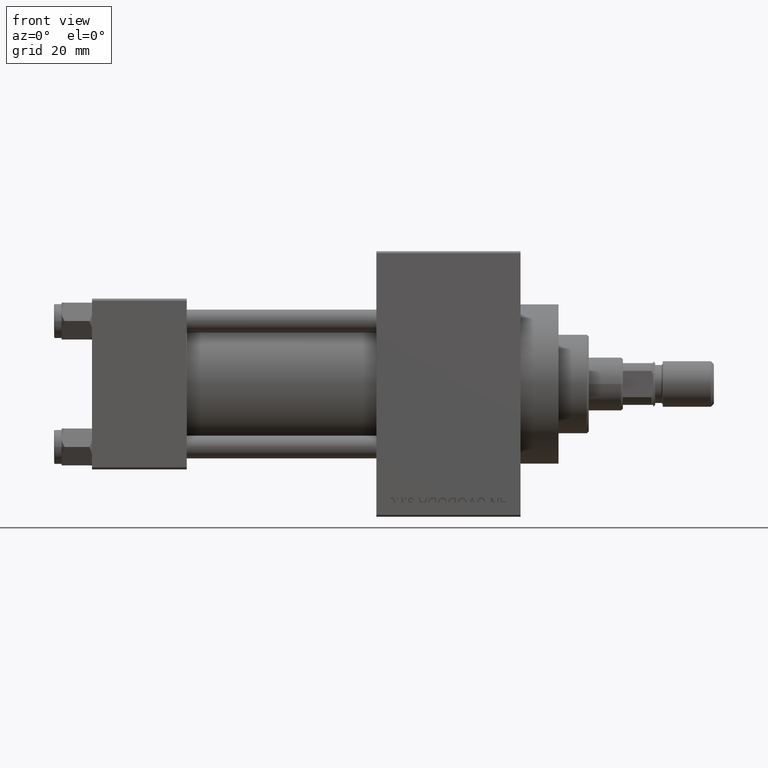
[diagram: clean part render]
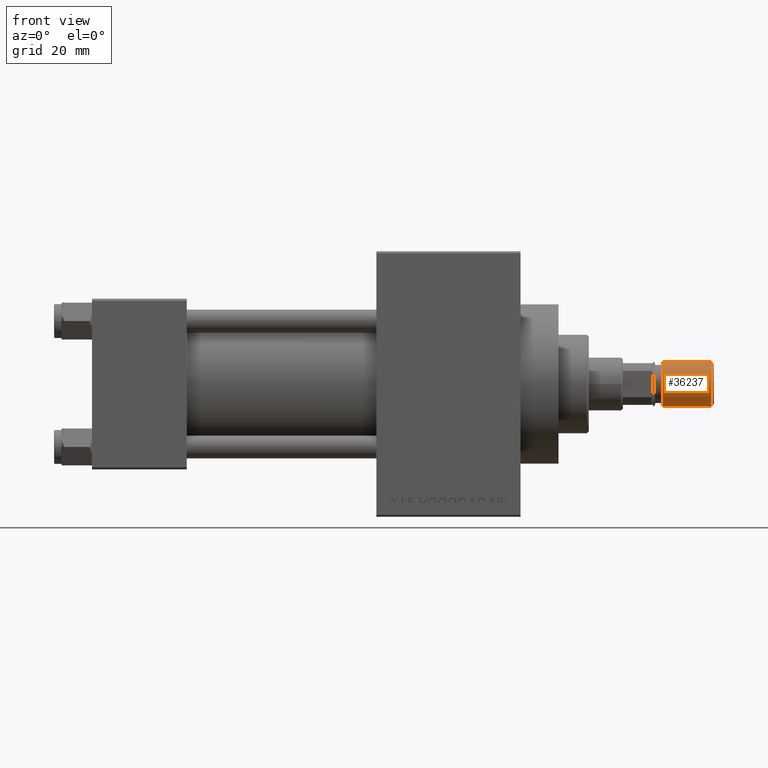
[diagram: same view with one face highlighted and labeled with its STEP entity id]
A machine part, front view. The second image highlights one B-rep face of the part: STEP entity #36237.
In plain terms, the highlighted cylindrical surface (edge-blend (fillet) strip) has radius 6 mm, axis along (1, -0, -0).
Its self-contained STEP definition (entity closure, byte-faithful):
#1813 = VECTOR ( 'NONE', #33920, 1000.000000000000000 ) ;
#1829 = CYLINDRICAL_SURFACE ( 'NONE', #43896, 6.000000000000000888 ) ;
#1890 = DIRECTION ( 'NONE',  ( 1.000000000000000000, 0.000000000000000000, 0.000000000000000000 ) ) ;
#2269 = CIRCLE ( 'NONE', #8412, 6.000000000000000888 ) ;
#2601 = CARTESIAN_POINT ( 'NONE',  ( 0.000000000000000000, 0.000000000000000000, 13.50000000000000000 ) ) ;
#3405 = CARTESIAN_POINT ( 'NONE',  ( -6.000000000000000888, 0.000000000000000000, 13.50000000000000000 ) ) ;
#4064 = CARTESIAN_POINT ( 'NONE',  ( 0.000000000000000000, 0.000000000000000000, 0.8000000000000055955 ) ) ;
#5361 = VERTEX_POINT ( 'NONE', #17881 ) ;
#5904 = CARTESIAN_POINT ( 'NONE',  ( 0.000000000000000000, 0.000000000000000000, 13.50000000000000000 ) ) ;
#6954 = CARTESIAN_POINT ( 'NONE',  ( 6.000000000000000888, 7.347880794884120722E-16, 13.50000000000000000 ) ) ;
#8412 = AXIS2_PLACEMENT_3D ( 'NONE', #2601, #28360, #1890 ) ;
#8624 = DIRECTION ( 'NONE',  ( -0.000000000000000000, -0.000000000000000000, 1.000000000000000000 ) ) ;
#8933 = VERTEX_POINT ( 'NONE', #3405 ) ;
#9529 = ORIENTED_EDGE ( 'NONE', *, *, #34880, .T. ) ;
#10388 = CARTESIAN_POINT ( 'NONE',  ( 6.000000000000000888, 7.347880794884120722E-16, 13.50000000000000000 ) ) ;
#12213 = EDGE_CURVE ( 'NONE', #31042, #5361, #25262, .T. ) ;
#17881 = CARTESIAN_POINT ( 'NONE',  ( 6.000000000000000888, 7.347880794884120722E-16, 0.8000000000000055955 ) ) ;
#19722 = VERTEX_POINT ( 'NONE', #28547 ) ;
#19985 = CIRCLE ( 'NONE', #23078, 6.000000000000000888 ) ;
#20611 = DIRECTION ( 'NONE',  ( -0.000000000000000000, -0.000000000000000000, -1.000000000000000000 ) ) ;
#22854 = DIRECTION ( 'NONE',  ( 1.000000000000000000, 0.000000000000000000, 0.000000000000000000 ) ) ;
#23078 = AXIS2_PLACEMENT_3D ( 'NONE', #4064, #8624, #22854 ) ;
#25262 = LINE ( 'NONE', #6954, #28108 ) ;
#26205 = LINE ( 'NONE', #37771, #1813 ) ;
#28108 = VECTOR ( 'NONE', #36351, 1000.000000000000000 ) ;
#28360 = DIRECTION ( 'NONE',  ( 0.000000000000000000, 0.000000000000000000, 1.000000000000000000 ) ) ;
#28547 = CARTESIAN_POINT ( 'NONE',  ( -6.000000000000000888, 0.000000000000000000, 0.8000000000000055955 ) ) ;
#28766 = ORIENTED_EDGE ( 'NONE', *, *, #33294, .F. ) ;
#31042 = VERTEX_POINT ( 'NONE', #10388 ) ;
#33294 = EDGE_CURVE ( 'NONE', #8933, #31042, #2269, .T. ) ;
#33920 = DIRECTION ( 'NONE',  ( -0.000000000000000000, -0.000000000000000000, -1.000000000000000000 ) ) ;
#34880 = EDGE_CURVE ( 'NONE', #19722, #5361, #19985, .T. ) ;
#35297 = DIRECTION ( 'NONE',  ( -1.000000000000000000, 0.000000000000000000, 0.000000000000000000 ) ) ;
#36237 = ADVANCED_FACE ( 'NONE', ( #38930 ), #1829, .T. ) ;
#36351 = DIRECTION ( 'NONE',  ( -0.000000000000000000, -0.000000000000000000, -1.000000000000000000 ) ) ;
#37014 = ORIENTED_EDGE ( 'NONE', *, *, #12213, .F. ) ;
#37771 = CARTESIAN_POINT ( 'NONE',  ( -6.000000000000000888, 0.000000000000000000, 13.50000000000000000 ) ) ;
#38930 = FACE_OUTER_BOUND ( 'NONE', #43052, .T. ) ;
#43052 = EDGE_LOOP ( 'NONE', ( #37014, #28766, #46889, #9529 ) ) ;
#43347 = EDGE_CURVE ( 'NONE', #8933, #19722, #26205, .T. ) ;
#43896 = AXIS2_PLACEMENT_3D ( 'NONE', #5904, #20611, #35297 ) ;
#46889 = ORIENTED_EDGE ( 'NONE', *, *, #43347, .T. ) ;